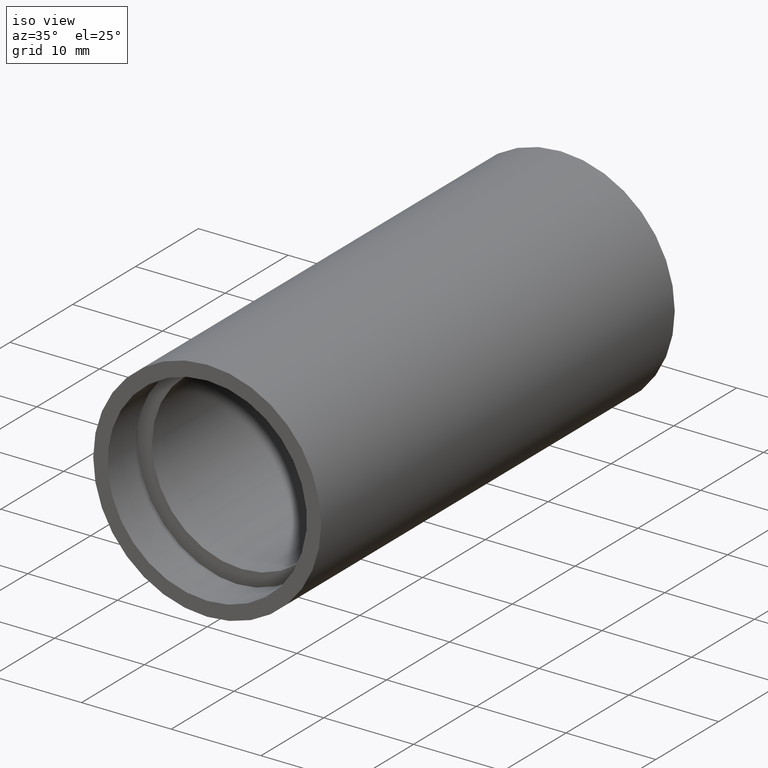
[diagram: clean part render]
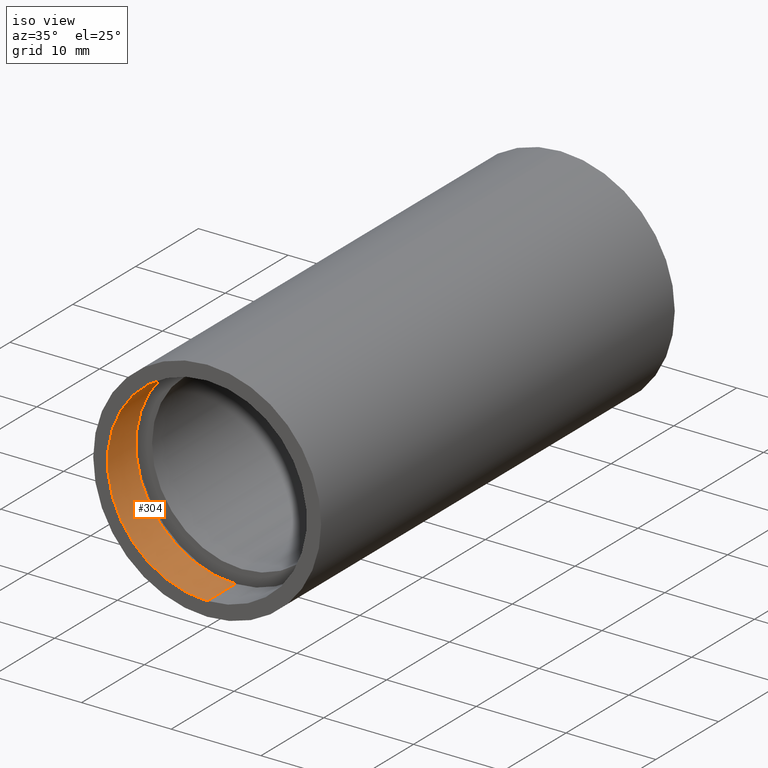
[diagram: same view with one face highlighted and labeled with its STEP entity id]
A machine part, iso view. The second image highlights one B-rep face of the part: STEP entity #304.
In plain terms, the highlighted cylindrical surface (partial cylindrical patch) has radius 11.1 mm, axis along (-0, 1, -0).
Its self-contained STEP definition (entity closure, byte-faithful):
#16 = EDGE_CURVE ( 'NONE', #595, #178, #398, .T. ) ;
#61 = ORIENTED_EDGE ( 'NONE', *, *, #258, .F. ) ;
#68 = DIRECTION ( 'NONE',  ( -0.0000000000000000000, 1.000000000000000000, -0.0000000000000000000 ) ) ;
#77 = CARTESIAN_POINT ( 'NONE',  ( 1.359357947053564500E-015, 161.3761669434274500, -11.10000000000002100 ) ) ;
#85 = CARTESIAN_POINT ( 'NONE',  ( 1.359357947053564900E-015, -2.775557561562891400E-014, -11.10000000000002300 ) ) ;
#88 = VERTEX_POINT ( 'NONE', #206 ) ;
#98 = CIRCLE ( 'NONE', #366, 11.10000000000002300 ) ;
#103 = CARTESIAN_POINT ( 'NONE',  ( 0.0000000000000000000, -2.775557561562891400E-014, 11.10000000000002300 ) ) ;
#113 = DIRECTION ( 'NONE',  ( -0.0000000000000000000, 1.000000000000000000, -0.0000000000000000000 ) ) ;
#141 = CARTESIAN_POINT ( 'NONE',  ( 0.0000000000000000000, 4.499999999999976000, 0.0000000000000000000 ) ) ;
#163 = ORIENTED_EDGE ( 'NONE', *, *, #560, .T. ) ;
#167 = DIRECTION ( 'NONE',  ( 0.0000000000000000000, 0.0000000000000000000, 1.000000000000000000 ) ) ;
#178 = VERTEX_POINT ( 'NONE', #204 ) ;
#180 = EDGE_LOOP ( 'NONE', ( #488, #335, #163, #61 ) ) ;
#196 = CYLINDRICAL_SURFACE ( 'NONE', #540, 11.10000000000002100 ) ;
#204 = CARTESIAN_POINT ( 'NONE',  ( 1.359357947053564500E-015, 4.499999999999976000, -11.10000000000001900 ) ) ;
#206 = CARTESIAN_POINT ( 'NONE',  ( 0.0000000000000000000, 4.499999999999976000, 11.10000000000001900 ) ) ;
#215 = VERTEX_POINT ( 'NONE', #103 ) ;
#242 = AXIS2_PLACEMENT_3D ( 'NONE', #141, #580, #387 ) ;
#258 = EDGE_CURVE ( 'NONE', #215, #88, #347, .T. ) ;
#263 = CARTESIAN_POINT ( 'NONE',  ( 0.0000000000000000000, -2.775557561562891400E-014, 0.0000000000000000000 ) ) ;
#294 = EDGE_CURVE ( 'NONE', #595, #215, #98, .T. ) ;
#302 = CIRCLE ( 'NONE', #242, 11.10000000000001900 ) ;
#304 = ADVANCED_FACE ( 'NONE', ( #421 ), #196, .F. ) ;
#335 = ORIENTED_EDGE ( 'NONE', *, *, #16, .T. ) ;
#347 = LINE ( 'NONE', #399, #551 ) ;
#366 = AXIS2_PLACEMENT_3D ( 'NONE', #263, #113, #167 ) ;
#370 = DIRECTION ( 'NONE',  ( 0.0000000000000000000, 0.0000000000000000000, 1.000000000000000000 ) ) ;
#387 = DIRECTION ( 'NONE',  ( 0.0000000000000000000, 0.0000000000000000000, 1.000000000000000000 ) ) ;
#398 = LINE ( 'NONE', #77, #465 ) ;
#399 = CARTESIAN_POINT ( 'NONE',  ( 0.0000000000000000000, 161.3761669434274500, 11.10000000000002100 ) ) ;
#408 = CARTESIAN_POINT ( 'NONE',  ( 0.0000000000000000000, 161.3761669434274500, 0.0000000000000000000 ) ) ;
#421 = FACE_OUTER_BOUND ( 'NONE', #180, .T. ) ;
#464 = DIRECTION ( 'NONE',  ( -0.0000000000000000000, 1.000000000000000000, -0.0000000000000000000 ) ) ;
#465 = VECTOR ( 'NONE', #464, 1000.000000000000000 ) ;
#488 = ORIENTED_EDGE ( 'NONE', *, *, #294, .F. ) ;
#496 = DIRECTION ( 'NONE',  ( -0.0000000000000000000, 1.000000000000000000, -0.0000000000000000000 ) ) ;
#540 = AXIS2_PLACEMENT_3D ( 'NONE', #408, #68, #370 ) ;
#551 = VECTOR ( 'NONE', #496, 1000.000000000000000 ) ;
#560 = EDGE_CURVE ( 'NONE', #178, #88, #302, .T. ) ;
#580 = DIRECTION ( 'NONE',  ( -0.0000000000000000000, 1.000000000000000000, -0.0000000000000000000 ) ) ;
#595 = VERTEX_POINT ( 'NONE', #85 ) ;